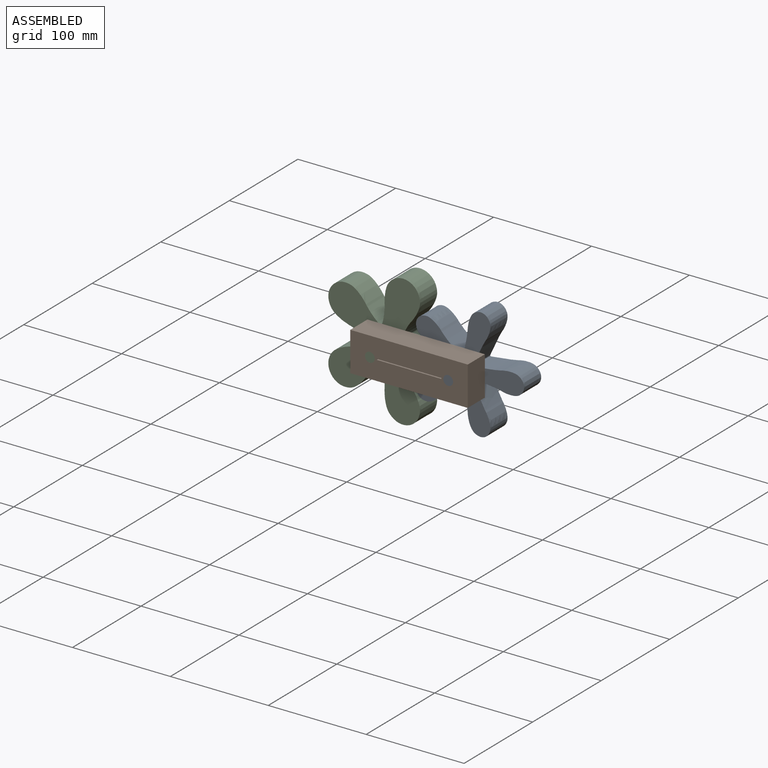
[diagram: assembled view]
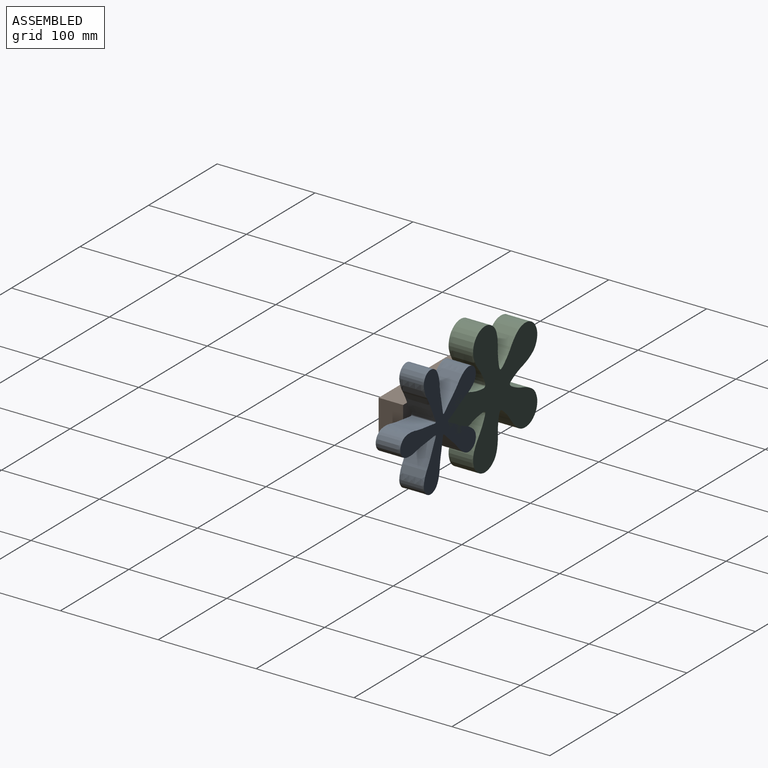
[diagram: assembled view, second angle]
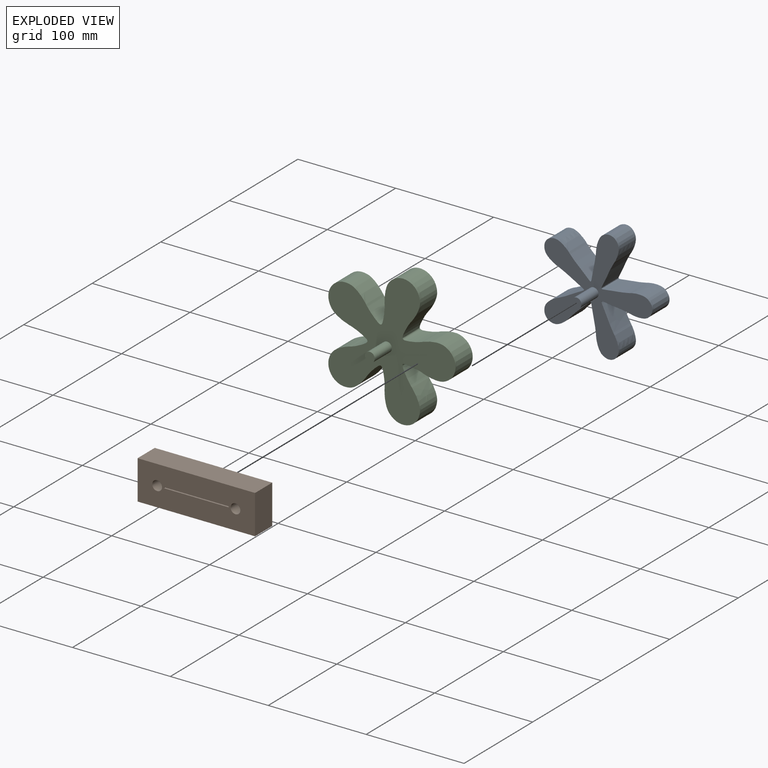
[diagram: exploded view]
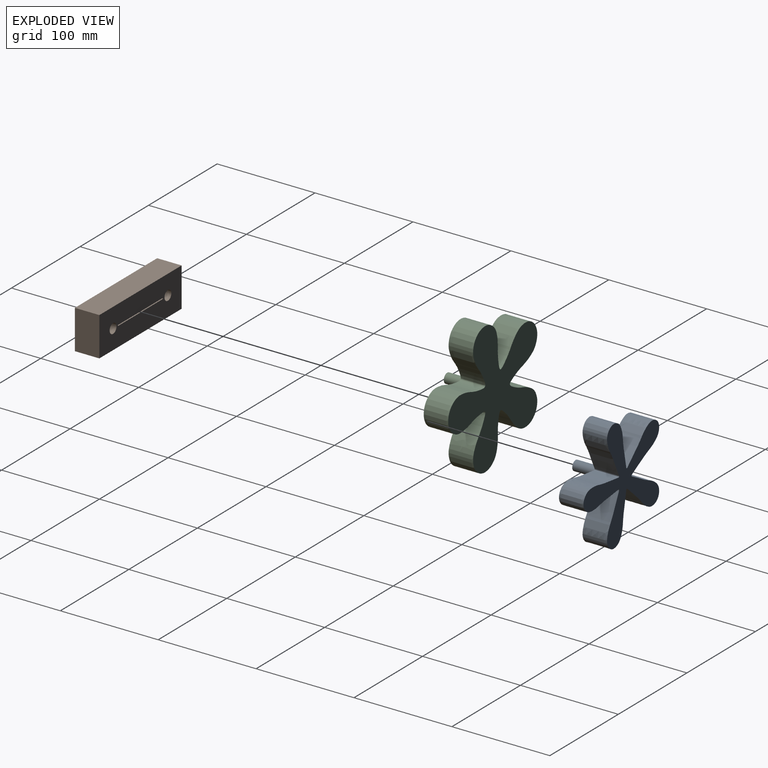
[diagram: exploded view, second angle]
ASSEMBLY  parts=3 mates=2
PART A: 24 faces, bbox 110.7x50x115.5 mm
  f0: extruded ~28.03x26.36mm, area 1438.8mm2, adj f1,f19,f20,f21
  f1: extruded ~25x1.85mm, area 59.7mm2, adj f0,f2,f20,f21
  f2: extruded ~25x24.87mm, area 1357.3mm2, adj f1,f3,f20,f21
  f3: extruded ~25x2.22mm, area 59.7mm2, adj f2,f4,f20,f21
  f4: extruded ~27.72x25mm, area 1438.8mm2, adj f3,f5,f20,f21
  f5: extruded ~25x2.22mm, area 59.7mm2, adj f4,f6,f20,f21
  f6: extruded ~25x24.87mm, area 1357.3mm2, adj f5,f7,f20,f21
  f7: extruded ~25x1.85mm, area 59.7mm2, adj f6,f8,f20,f21
  f8: extruded ~28.03x26.36mm, area 1438.8mm2, adj f7,f9,f20,f21
  f9: extruded ~25x2.38mm, area 59.7mm2, adj f8,f10,f20,f21
  f10: extruded ~25x23.75mm, area 1357.3mm2, adj f9,f11,f20,f21
  f11: extruded ~25x2.01mm, area 59.7mm2, adj f10,f12,f20,f21
  f12: extruded ~28.43x26.2mm, area 1438.8mm2, adj f11,f13,f20,f21
  f13: extruded ~25x2.31mm, area 59.7mm2, adj f12,f14,f20,f21
  f14: extruded ~25x21.5mm, area 1357.3mm2, adj f13,f15,f20,f21
  f15: extruded ~25x2.31mm, area 59.7mm2, adj f14,f16,f20,f21
  f16: extruded ~28.43x26.2mm, area 1438.8mm2, adj f15,f17,f20,f21
  f17: extruded ~25x2.01mm, area 59.7mm2, adj f16,f18,f20,f21
  f18: extruded ~25x23.75mm, area 1357.3mm2, adj f17,f19,f20,f21
  f19: extruded ~25x2.38mm, area 59.7mm2, adj f0,f18,f20,f21
  f20: plane 115.53x110.67mm, normal (0,1,0), area 4491.3mm2, adj f0,f1,f2,f3,f4,f5,f6,f7
  f21: plane 115.53x110.67mm, normal (0,-1,0), area 4412.8mm2, adj f0,f1,f2,f3,f4,f5,f6,f7
  f22: plane 10x10mm, normal (0,-1,0), area 78.5mm2, adj f23
  f23: cylinder r=5mm len=25mm, axis (0,1,0), area 785.4mm2, adj f21,f22
PART B: 12 faces, bbox 120x25x40 mm
  f0: plane 66x25mm, normal (0,0,1), area 1650mm2, adj f1,f9,f10,f11
  f1: plane 25x1mm, normal (1,0,0), area 25mm2, adj f0,f2,f10,f11
  f2: plane 66x25mm, normal (0,0,-1), area 1650mm2, adj f1,f9,f10,f11
  f3: plane 40x25mm, normal (-1,0,0), area 1000mm2, adj f4,f8,f10,f11
  f4: plane 120x25mm, normal (0,0,-1), area 3000mm2, adj f3,f5,f10,f11
  f5: plane 40x25mm, normal (1,0,0), area 1000mm2, adj f4,f8,f10,f11
  f6: cylinder r=5mm len=25mm, axis (0,1,0), area 785.4mm2, adj f10,f11
  f7: cylinder r=5mm len=25mm, axis (0,1,0), area 785.4mm2, adj f10,f11
  f8: plane 120x25mm, normal (0,0,1), area 3000mm2, adj f3,f5,f10,f11
  f9: plane 25x1mm, normal (-1,0,0), area 25mm2, adj f0,f2,f10,f11
  f10: plane 120x40mm, normal (0,-1,0), area 4576.9mm2, adj f0,f1,f2,f3,f4,f5,f6,f7
  f11: plane 120x40mm, normal (0,1,0), area 4576.9mm2, adj f0,f1,f2,f3,f4,f5,f6,f7
PART C: 24 faces, bbox 130.2x50x135.2 mm
  f0: extruded ~25x2.31mm, area 59.7mm2, adj f1,f19,f20,f21
  f1: extruded ~25x18.68mm, area 966.7mm2, adj f0,f2,f20,f21
  f2: extruded ~25x2.31mm, area 59.7mm2, adj f1,f3,f20,f21
  f3: extruded ~38.51x38.3mm, area 2154.4mm2, adj f2,f4,f20,f21
  f4: extruded ~25x2.01mm, area 59.7mm2, adj f3,f5,f20,f21
  f5: extruded ~25x18.58mm, area 966.7mm2, adj f4,f6,f20,f21
  f6: extruded ~25x2.38mm, area 59.7mm2, adj f5,f7,f20,f21
  f7: extruded ~36.59x36.2mm, area 2154.4mm2, adj f6,f8,f20,f21
  f8: extruded ~25x1.85mm, area 59.7mm2, adj f7,f9,f20,f21
  f9: extruded ~25x19.08mm, area 966.7mm2, adj f8,f10,f20,f21
  f10: extruded ~25x2.22mm, area 59.7mm2, adj f9,f11,f20,f21
  f11: extruded ~35.07x32.81mm, area 2154.4mm2, adj f10,f12,f20,f21
  f12: extruded ~25x2.22mm, area 59.7mm2, adj f11,f13,f20,f21
  f13: extruded ~25x19.08mm, area 966.7mm2, adj f12,f14,f20,f21
  f14: extruded ~25x1.85mm, area 59.7mm2, adj f13,f15,f20,f21
  f15: extruded ~36.59x36.2mm, area 2154.4mm2, adj f14,f16,f20,f21
  f16: extruded ~25x2.38mm, area 59.7mm2, adj f15,f17,f20,f21
  f17: extruded ~25x18.58mm, area 966.7mm2, adj f16,f18,f20,f21
  f18: extruded ~25x2.01mm, area 59.7mm2, adj f17,f19,f20,f21
  f19: extruded ~38.51x38.3mm, area 2154.4mm2, adj f0,f18,f20,f21
  f20: plane 135.18x130.23mm, normal (0,1,0), area 8437.8mm2, adj f0,f1,f2,f3,f4,f5,f6,f7
  f21: plane 135.18x130.23mm, normal (0,-1,0), area 8359.2mm2, adj f0,f1,f2,f3,f4,f5,f6,f7
  f22: plane 10x10mm, normal (0,-1,0), area 78.5mm2, adj f23
  f23: cylinder r=5mm len=25mm, axis (0,1,0), area 785.4mm2, adj f21,f22
PLACE A t=(41.79,13.42,0.48)mm
PLACE B t=(1.79,13.42,0.48)mm fixed
PLACE C t=(-38.21,13.42,0.48)mm
MATE revolute A.f23 <-> B.f6  axis (0,-1,0) through (41.79,-11.58,0.48)mm
MATE revolute C.f23 <-> B.f7  axis (0,-1,0) through (-38.21,-11.58,0.48)mm
